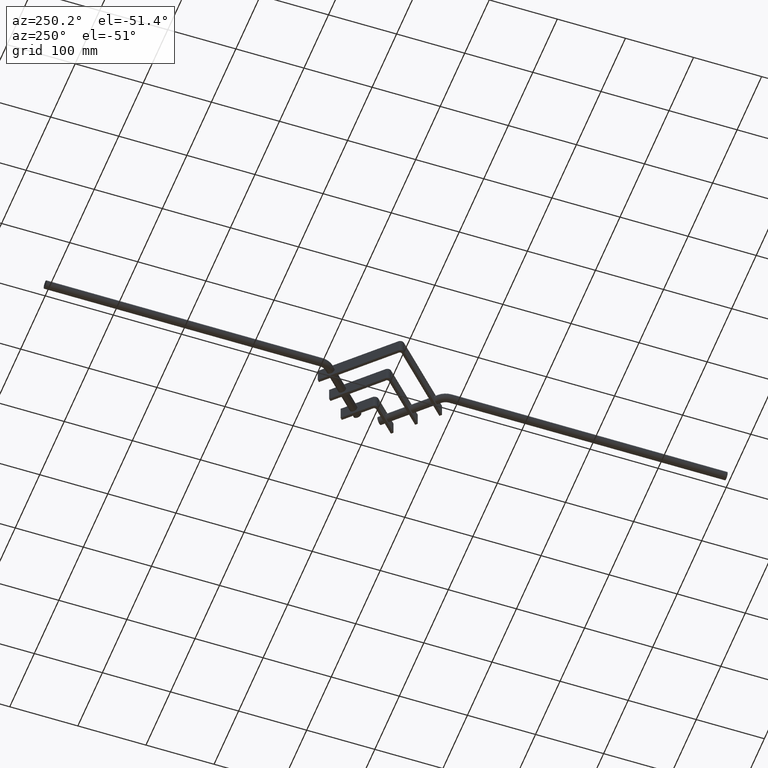
[diagram: clean part render]
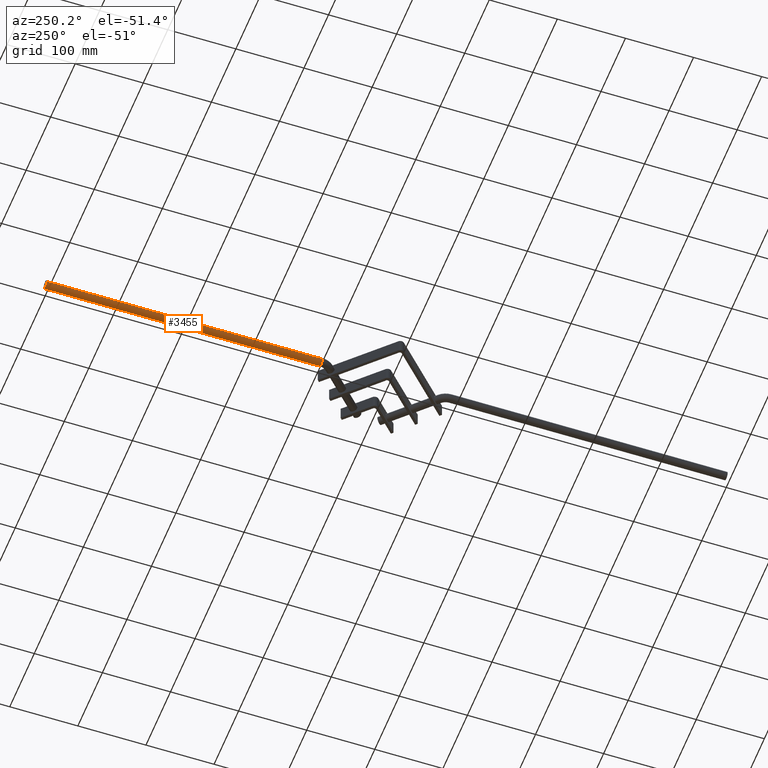
[diagram: same view with one face highlighted and labeled with its STEP entity id]
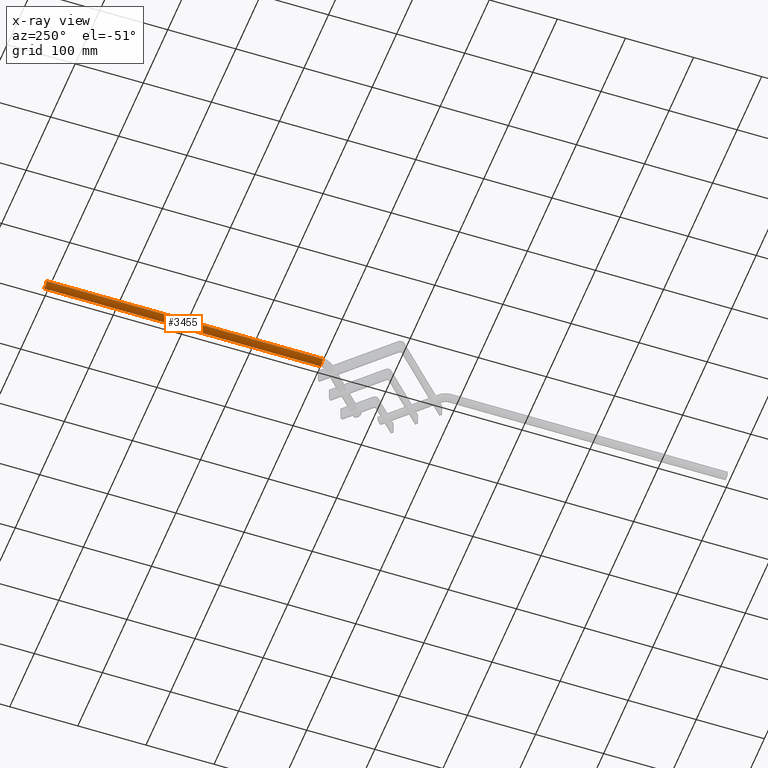
[diagram: x-ray of the same camera — body ghosted, the highlighted face saturated]
A machine part, auxiliary view. The second image highlights one B-rep face of the part: STEP entity #3455.
The next image is the same camera in x-ray: the body ghosted, the highlighted face saturated — about 0% of this face is hidden behind the body in this view.
In plain terms, the highlighted cylindrical surface (edge-blend (fillet) strip) has radius 6 mm, axis along (-0, 1, -0).
Its self-contained STEP definition (entity closure, byte-faithful):
#5 = DIRECTION ( 'NONE',  ( -1.197160806483219500E-016, 1.000000000000000000, -0.0000000000000000000 ) ) ;
#37 = ORIENTED_EDGE ( 'NONE', *, *, #3284, .F. ) ;
#39 = VERTEX_POINT ( 'NONE', #1389 ) ;
#50 = CARTESIAN_POINT ( 'NONE',  ( 4.848501266257038900E-014, 595.0000000000000000, 0.0000000000000000000 ) ) ;
#126 = VERTEX_POINT ( 'NONE', #1527 ) ;
#402 = DIRECTION ( 'NONE',  ( 0.0000000000000000000, 1.000000000000000000, 0.0000000000000000000 ) ) ;
#557 = DIRECTION ( 'NONE',  ( -1.197160806483219500E-016, 1.000000000000000000, -0.0000000000000000000 ) ) ;
#652 = DIRECTION ( 'NONE',  ( 0.0000000000000000000, 0.0000000000000000000, 1.000000000000000000 ) ) ;
#757 = CIRCLE ( 'NONE', #6835, 6.000000000000000900 ) ;
#1167 = LINE ( 'NONE', #2404, #2584 ) ;
#1389 = CARTESIAN_POINT ( 'NONE',  ( 6.000000000000000900, 1000.000000000000000, 7.347880794884120700E-016 ) ) ;
#1527 = CARTESIAN_POINT ( 'NONE',  ( -6.000000000000000900, 1000.000000000000000, 0.0000000000000000000 ) ) ;
#1722 = CYLINDRICAL_SURFACE ( 'NONE', #4345, 6.000000000000000900 ) ;
#1886 = EDGE_CURVE ( 'NONE', #4648, #3295, #757, .T. ) ;
#1920 = FACE_OUTER_BOUND ( 'NONE', #3693, .T. ) ;
#2404 = CARTESIAN_POINT ( 'NONE',  ( -5.999999999999952000, 595.0000000000000000, 0.0000000000000000000 ) ) ;
#2584 = VECTOR ( 'NONE', #557, 1000.000000000000000 ) ;
#3003 = CARTESIAN_POINT ( 'NONE',  ( 6.000000000000049700, 595.0000000000000000, 7.347880794884120700E-016 ) ) ;
#3111 = ORIENTED_EDGE ( 'NONE', *, *, #1886, .T. ) ;
#3284 = EDGE_CURVE ( 'NONE', #39, #126, #4171, .T. ) ;
#3295 = VERTEX_POINT ( 'NONE', #3398 ) ;
#3398 = CARTESIAN_POINT ( 'NONE',  ( -5.999999999999952000, 595.0000000000000000, 0.0000000000000000000 ) ) ;
#3455 = ADVANCED_FACE ( 'NONE', ( #1920 ), #1722, .T. ) ;
#3554 = DIRECTION ( 'NONE',  ( -1.197160806483219500E-016, 1.000000000000000000, -0.0000000000000000000 ) ) ;
#3693 = EDGE_LOOP ( 'NONE', ( #5853, #3111, #7538, #37 ) ) ;
#3727 = VECTOR ( 'NONE', #5, 1000.000000000000000 ) ;
#3905 = LINE ( 'NONE', #3003, #3727 ) ;
#3943 = CARTESIAN_POINT ( 'NONE',  ( 0.0000000000000000000, 1000.000000000000000, 0.0000000000000000000 ) ) ;
#4006 = EDGE_CURVE ( 'NONE', #3295, #126, #1167, .T. ) ;
#4054 = EDGE_CURVE ( 'NONE', #4648, #39, #3905, .T. ) ;
#4171 = CIRCLE ( 'NONE', #4873, 6.000000000000000900 ) ;
#4177 = DIRECTION ( 'NONE',  ( 0.0000000000000000000, 1.000000000000000000, 0.0000000000000000000 ) ) ;
#4345 = AXIS2_PLACEMENT_3D ( 'NONE', #4795, #3554, #6982 ) ;
#4512 = DIRECTION ( 'NONE',  ( 0.0000000000000000000, 0.0000000000000000000, 1.000000000000000000 ) ) ;
#4648 = VERTEX_POINT ( 'NONE', #5103 ) ;
#4795 = CARTESIAN_POINT ( 'NONE',  ( 4.848501266257038900E-014, 595.0000000000000000, 0.0000000000000000000 ) ) ;
#4873 = AXIS2_PLACEMENT_3D ( 'NONE', #3943, #402, #4512 ) ;
#5103 = CARTESIAN_POINT ( 'NONE',  ( 6.000000000000049700, 595.0000000000000000, 7.347880794884149300E-016 ) ) ;
#5853 = ORIENTED_EDGE ( 'NONE', *, *, #4054, .F. ) ;
#6835 = AXIS2_PLACEMENT_3D ( 'NONE', #50, #4177, #652 ) ;
#6982 = DIRECTION ( 'NONE',  ( -1.000000000000000000, 0.0000000000000000000, 0.0000000000000000000 ) ) ;
#7538 = ORIENTED_EDGE ( 'NONE', *, *, #4006, .T. ) ;